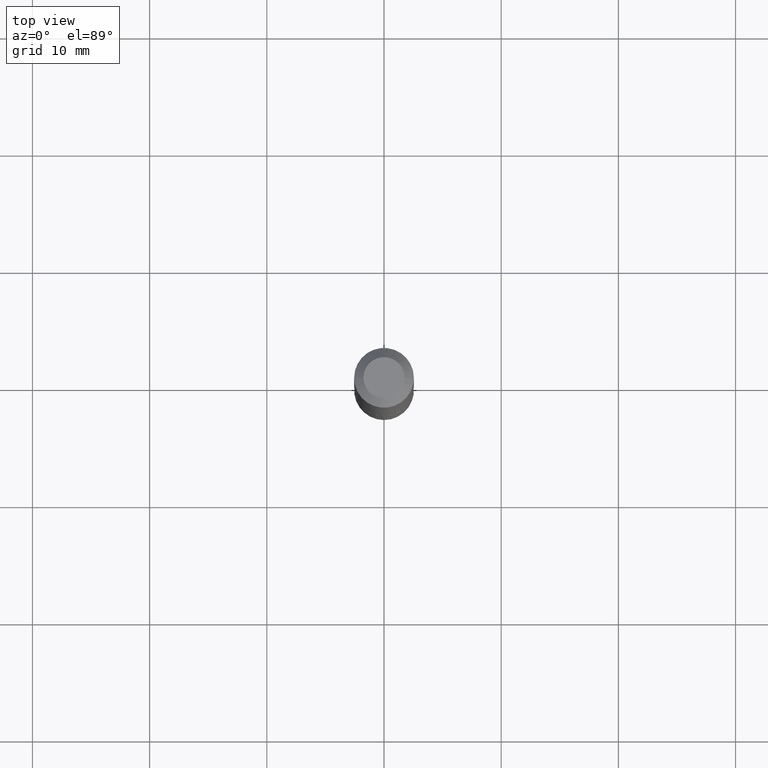
[diagram: clean part render]
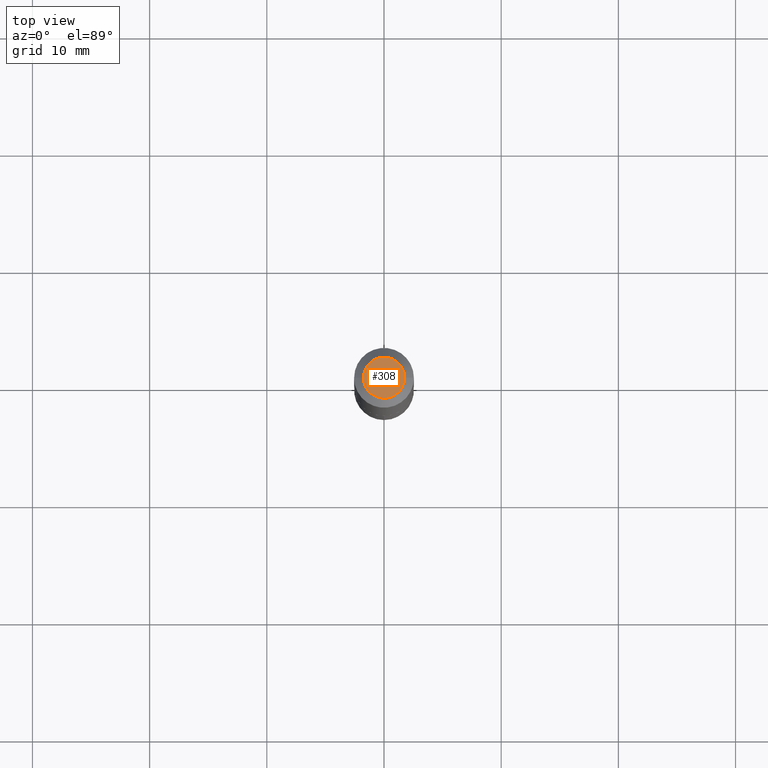
[diagram: same view with one face highlighted and labeled with its STEP entity id]
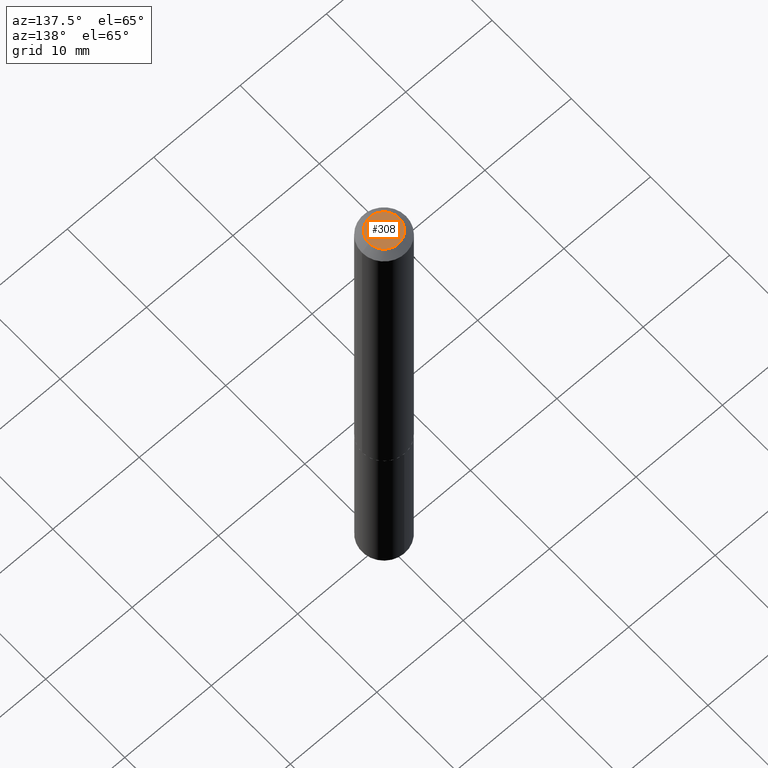
[diagram: same view with one face highlighted and labeled with its STEP entity id]
A machine part, top view. The second image highlights one B-rep face of the part: STEP entity #308.
A second angle (auxiliary view) of the same face is appended — the face is thin or edge-on in the first view.
In plain terms, the highlighted planar face has unit normal (0, -0, -1).
Its self-contained STEP definition (entity closure, byte-faithful):
#12 = CIRCLE ( 'NONE', #161, 0.06915000000000000313 ) ;
#13 = CIRCLE ( 'NONE', #229, 0.06915000000000000313 ) ;
#33 = VERTEX_POINT ( 'NONE', #334 ) ;
#73 = EDGE_CURVE ( 'NONE', #33, #299, #13, .T. ) ;
#77 = EDGE_LOOP ( 'NONE', ( #211, #169 ) ) ;
#84 = CARTESIAN_POINT ( 'NONE',  ( -2.919964657261610798E-48, 4.168935659749573735E-34, 1.194030629168676459E-19 ) ) ;
#99 = DIRECTION ( 'NONE',  ( 1.000000000000000000, -6.982962677686267499E-15, 4.876193722628741627E-29 ) ) ;
#125 = DIRECTION ( 'NONE',  ( 1.000000000000000000, -6.982962677686267499E-15, 4.876193722628741627E-29 ) ) ;
#138 = CARTESIAN_POINT ( 'NONE',  ( -0.06915000000000000313, 5.374262650814288063E-16, 2.388061258301678436E-19 ) ) ;
#140 = PLANE ( 'NONE',  #254 ) ;
#147 = FACE_OUTER_BOUND ( 'NONE', #77, .T. ) ;
#153 = DIRECTION ( 'NONE',  ( -2.445468806185136597E-29, 3.491481338843145583E-15, 1.000000000000000000 ) ) ;
#161 = AXIS2_PLACEMENT_3D ( 'NONE', #249, #303, #99 ) ;
#169 = ORIENTED_EDGE ( 'NONE', *, *, #73, .T. ) ;
#211 = ORIENTED_EDGE ( 'NONE', *, *, #237, .T. ) ;
#229 = AXIS2_PLACEMENT_3D ( 'NONE', #386, #153, #125 ) ;
#237 = EDGE_CURVE ( 'NONE', #299, #33, #12, .T. ) ;
#249 = CARTESIAN_POINT ( 'NONE',  ( -5.839929314523221596E-48, 8.337871319499147471E-34, 2.388061258337352918E-19 ) ) ;
#254 = AXIS2_PLACEMENT_3D ( 'NONE', #84, #267, #282 ) ;
#267 = DIRECTION ( 'NONE',  ( 2.438088387897960049E-29, -3.491481338843145188E-15, -1.000000000000000000 ) ) ;
#282 = DIRECTION ( 'NONE',  ( -1.000000000000000000, 6.982962677686265922E-15, -4.876176775795935793E-29 ) ) ;
#299 = VERTEX_POINT ( 'NONE', #138 ) ;
#303 = DIRECTION ( 'NONE',  ( -2.445468806185136597E-29, 3.491481338843145583E-15, 1.000000000000000000 ) ) ;
#308 = ADVANCED_FACE ( 'NONE', ( #147 ), #140, .F. ) ;
#334 = CARTESIAN_POINT ( 'NONE',  ( 0.06915000000000000313, -6.361531136805061115E-16, 2.388061258376474814E-19 ) ) ;
#386 = CARTESIAN_POINT ( 'NONE',  ( -5.839929314523221596E-48, 8.337871319499147471E-34, 2.388061258337352918E-19 ) ) ;